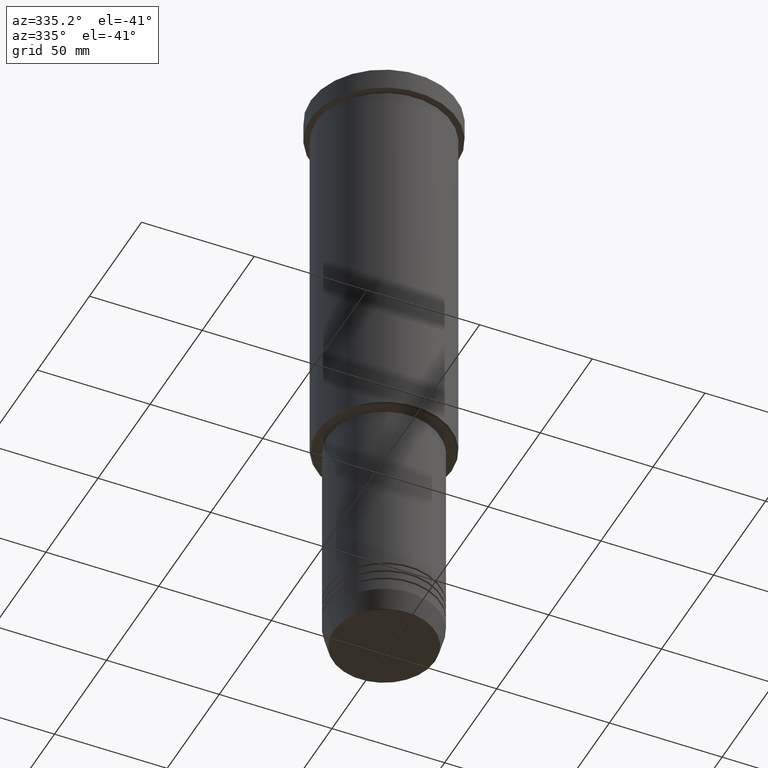
[diagram: clean part render]
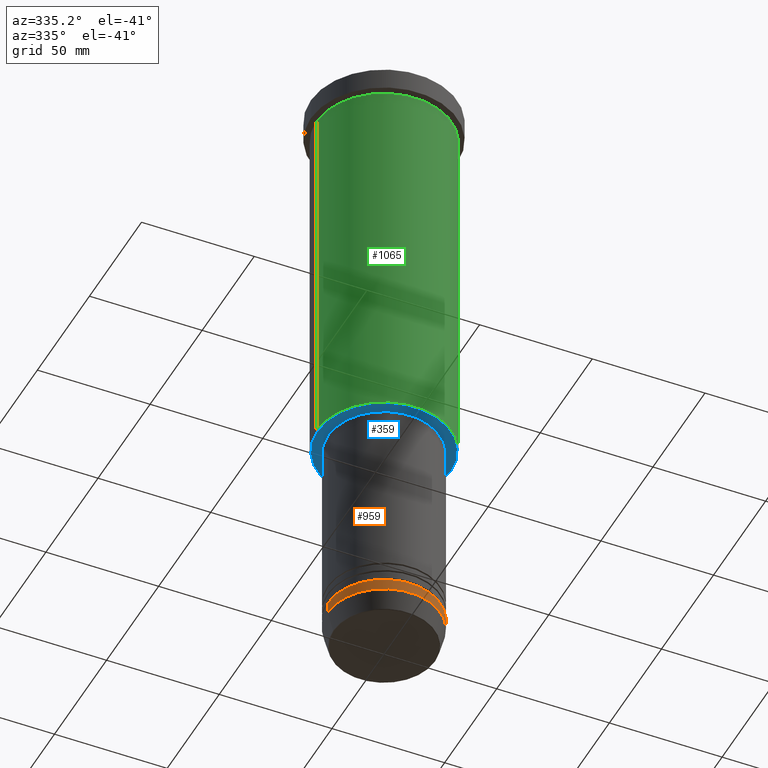
[diagram: same view with three faces highlighted in distinct colors, each labeled with its STEP entity id]
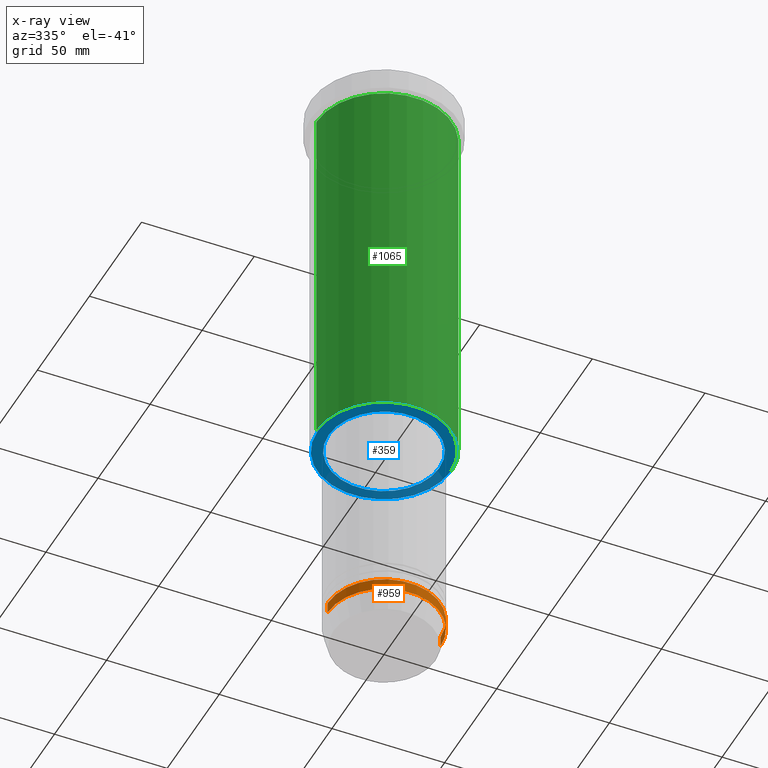
[diagram: x-ray of the same camera — body ghosted, the three highlighted faces saturated]
A machine part, auxiliary view with three faces highlighted in distinct colors.
The next image is the same camera in x-ray (body ghosted, the three faces saturated) — at least one of them is partly hidden behind the body in this view.
Their STEP definitions:

[orange] entity #959 — the highlighted cylindrical surface (partial cylindrical patch) has radius 25 mm, axis along (-0, -0, 1).
#4 = DIRECTION ( 'NONE',  ( 1.000000000000000000, 0.000000000000000000, 0.000000000000000000 ) ) ;
#19 = ORIENTED_EDGE ( 'NONE', *, *, #1155, .F. ) ;
#33 = CARTESIAN_POINT ( 'NONE',  ( -25.00000000000000000, 3.061616997868383043E-15, -271.0000000000000000 ) ) ;
#86 = ORIENTED_EDGE ( 'NONE', *, *, #923, .F. ) ;
#89 = DIRECTION ( 'NONE',  ( 1.000000000000000000, 0.000000000000000000, 0.000000000000000000 ) ) ;
#120 = CIRCLE ( 'NONE', #850, 25.00000000000000000 ) ;
#135 = CARTESIAN_POINT ( 'NONE',  ( -25.00000000000000000, 3.061616997868383043E-15, 0.000000000000000000 ) ) ;
#172 = CARTESIAN_POINT ( 'NONE',  ( 0.000000000000000000, 0.000000000000000000, 0.000000000000000000 ) ) ;
#181 = VERTEX_POINT ( 'NONE', #398 ) ;
#205 = CARTESIAN_POINT ( 'NONE',  ( 0.000000000000000000, 0.000000000000000000, -271.0000000000000000 ) ) ;
#303 = DIRECTION ( 'NONE',  ( 1.000000000000000000, 0.000000000000000000, 0.000000000000000000 ) ) ;
#333 = AXIS2_PLACEMENT_3D ( 'NONE', #205, #397, #303 ) ;
#370 = VECTOR ( 'NONE', #936, 1000.000000000000000 ) ;
#371 = CARTESIAN_POINT ( 'NONE',  ( 25.00000000000000000, 0.000000000000000000, 0.000000000000000000 ) ) ;
#397 = DIRECTION ( 'NONE',  ( -0.000000000000000000, -0.000000000000000000, 1.000000000000000000 ) ) ;
#398 = CARTESIAN_POINT ( 'NONE',  ( -25.00000000000000000, 3.061616997868383043E-15, -266.0000000000000000 ) ) ;
#516 = CIRCLE ( 'NONE', #333, 25.00000000000000000 ) ;
#556 = LINE ( 'NONE', #371, #962 ) ;
#563 = CYLINDRICAL_SURFACE ( 'NONE', #993, 25.00000000000000000 ) ;
#578 = LINE ( 'NONE', #135, #370 ) ;
#679 = VERTEX_POINT ( 'NONE', #852 ) ;
#834 = CARTESIAN_POINT ( 'NONE',  ( 0.000000000000000000, 0.000000000000000000, -266.0000000000000000 ) ) ;
#843 = VERTEX_POINT ( 'NONE', #1170 ) ;
#850 = AXIS2_PLACEMENT_3D ( 'NONE', #834, #929, #89 ) ;
#852 = CARTESIAN_POINT ( 'NONE',  ( 25.00000000000000000, 0.000000000000000000, -271.0000000000000000 ) ) ;
#910 = FACE_OUTER_BOUND ( 'NONE', #1099, .T. ) ;
#914 = DIRECTION ( 'NONE',  ( -0.000000000000000000, -0.000000000000000000, 1.000000000000000000 ) ) ;
#923 = EDGE_CURVE ( 'NONE', #181, #843, #120, .T. ) ;
#929 = DIRECTION ( 'NONE',  ( -0.000000000000000000, -0.000000000000000000, 1.000000000000000000 ) ) ;
#936 = DIRECTION ( 'NONE',  ( -0.000000000000000000, -0.000000000000000000, 1.000000000000000000 ) ) ;
#959 = ADVANCED_FACE ( 'NONE', ( #910 ), #563, .T. ) ;
#962 = VECTOR ( 'NONE', #914, 1000.000000000000000 ) ;
#966 = EDGE_CURVE ( 'NONE', #679, #843, #556, .T. ) ;
#993 = AXIS2_PLACEMENT_3D ( 'NONE', #172, #1100, #4 ) ;
#1082 = ORIENTED_EDGE ( 'NONE', *, *, #1139, .T. ) ;
#1091 = ORIENTED_EDGE ( 'NONE', *, *, #966, .T. ) ;
#1092 = VERTEX_POINT ( 'NONE', #33 ) ;
#1099 = EDGE_LOOP ( 'NONE', ( #19, #1082, #1091, #86 ) ) ;
#1100 = DIRECTION ( 'NONE',  ( -0.000000000000000000, -0.000000000000000000, 1.000000000000000000 ) ) ;
#1139 = EDGE_CURVE ( 'NONE', #1092, #679, #516, .T. ) ;
#1155 = EDGE_CURVE ( 'NONE', #1092, #181, #578, .T. ) ;
#1170 = CARTESIAN_POINT ( 'NONE',  ( 25.00000000000000000, 0.000000000000000000, -266.0000000000000000 ) ) ;

[blue] entity #359 — the highlighted planar face has unit normal (0, 0, -1).
#49 = FACE_OUTER_BOUND ( 'NONE', #639, .T. ) ;
#71 = CARTESIAN_POINT ( 'NONE',  ( 0.000000000000000000, 0.000000000000000000, -176.0000000000000000 ) ) ;
#119 = VERTEX_POINT ( 'NONE', #777 ) ;
#125 = CIRCLE ( 'NONE', #949, 29.50000000000007816 ) ;
#165 = EDGE_LOOP ( 'NONE', ( #374, #459 ) ) ;
#189 = DIRECTION ( 'NONE',  ( 1.000000000000000000, 0.000000000000000000, 0.000000000000000000 ) ) ;
#227 = FACE_BOUND ( 'NONE', #165, .T. ) ;
#251 = VERTEX_POINT ( 'NONE', #857 ) ;
#262 = ORIENTED_EDGE ( 'NONE', *, *, #413, .T. ) ;
#268 = AXIS2_PLACEMENT_3D ( 'NONE', #71, #449, #712 ) ;
#334 = CARTESIAN_POINT ( 'NONE',  ( 0.000000000000000000, 30.00000000000000000, -176.0000000000000000 ) ) ;
#359 = ADVANCED_FACE ( 'NONE', ( #49, #227 ), #1140, .T. ) ;
#374 = ORIENTED_EDGE ( 'NONE', *, *, #457, .T. ) ;
#413 = EDGE_CURVE ( 'NONE', #448, #927, #125, .T. ) ;
#416 = DIRECTION ( 'NONE',  ( -0.000000000000000000, -0.000000000000000000, 1.000000000000000000 ) ) ;
#420 = CARTESIAN_POINT ( 'NONE',  ( 0.000000000000000000, 0.000000000000000000, -176.0000000000000000 ) ) ;
#427 = AXIS2_PLACEMENT_3D ( 'NONE', #520, #416, #786 ) ;
#448 = VERTEX_POINT ( 'NONE', #518 ) ;
#449 = DIRECTION ( 'NONE',  ( 0.000000000000000000, 0.000000000000000000, -1.000000000000000000 ) ) ;
#457 = EDGE_CURVE ( 'NONE', #119, #251, #992, .T. ) ;
#459 = ORIENTED_EDGE ( 'NONE', *, *, #612, .T. ) ;
#465 = AXIS2_PLACEMENT_3D ( 'NONE', #847, #571, #189 ) ;
#518 = CARTESIAN_POINT ( 'NONE',  ( -29.50000000000007816, 3.643324227463380124E-15, -176.0000000000000000 ) ) ;
#520 = CARTESIAN_POINT ( 'NONE',  ( 0.000000000000000000, 0.000000000000000000, -176.0000000000000000 ) ) ;
#571 = DIRECTION ( 'NONE',  ( -0.000000000000000000, -0.000000000000000000, 1.000000000000000000 ) ) ;
#612 = EDGE_CURVE ( 'NONE', #251, #119, #1168, .T. ) ;
#620 = CIRCLE ( 'NONE', #268, 29.50000000000007816 ) ;
#639 = EDGE_LOOP ( 'NONE', ( #829, #262 ) ) ;
#649 = AXIS2_PLACEMENT_3D ( 'NONE', #334, #700, #1051 ) ;
#700 = DIRECTION ( 'NONE',  ( 0.000000000000000000, 0.000000000000000000, -1.000000000000000000 ) ) ;
#712 = DIRECTION ( 'NONE',  ( -1.000000000000000000, 0.000000000000000000, 0.000000000000000000 ) ) ;
#749 = CARTESIAN_POINT ( 'NONE',  ( 29.50000000000007816, 0.000000000000000000, -176.0000000000000000 ) ) ;
#777 = CARTESIAN_POINT ( 'NONE',  ( 24.50000000000000000, 0.000000000000000000, -176.0000000000000000 ) ) ;
#786 = DIRECTION ( 'NONE',  ( 1.000000000000000000, 0.000000000000000000, 0.000000000000000000 ) ) ;
#789 = DIRECTION ( 'NONE',  ( 0.000000000000000000, 0.000000000000000000, -1.000000000000000000 ) ) ;
#829 = ORIENTED_EDGE ( 'NONE', *, *, #871, .T. ) ;
#847 = CARTESIAN_POINT ( 'NONE',  ( 0.000000000000000000, 0.000000000000000000, -176.0000000000000000 ) ) ;
#857 = CARTESIAN_POINT ( 'NONE',  ( -24.50000000000000000, 3.000384657911015469E-15, -176.0000000000000000 ) ) ;
#871 = EDGE_CURVE ( 'NONE', #927, #448, #620, .T. ) ;
#879 = DIRECTION ( 'NONE',  ( -1.000000000000000000, 0.000000000000000000, 0.000000000000000000 ) ) ;
#927 = VERTEX_POINT ( 'NONE', #749 ) ;
#949 = AXIS2_PLACEMENT_3D ( 'NONE', #420, #789, #879 ) ;
#992 = CIRCLE ( 'NONE', #427, 24.50000000000000000 ) ;
#1051 = DIRECTION ( 'NONE',  ( -1.000000000000000000, 0.000000000000000000, -0.000000000000000000 ) ) ;
#1140 = PLANE ( 'NONE',  #649 ) ;
#1168 = CIRCLE ( 'NONE', #465, 24.50000000000000000 ) ;

[green] entity #1065 — the highlighted cylindrical surface (partial cylindrical patch) has radius 30 mm, axis along (-0, -0, 1).
#12 = CARTESIAN_POINT ( 'NONE',  ( 0.000000000000000000, 0.000000000000000000, -10.99999999999999289 ) ) ;
#17 = CARTESIAN_POINT ( 'NONE',  ( -30.00000000000000000, 3.673940397442059178E-15, -10.99999999999999289 ) ) ;
#28 = AXIS2_PLACEMENT_3D ( 'NONE', #12, #487, #846 ) ;
#37 = ORIENTED_EDGE ( 'NONE', *, *, #540, .T. ) ;
#39 = FACE_OUTER_BOUND ( 'NONE', #168, .T. ) ;
#46 = DIRECTION ( 'NONE',  ( -0.000000000000000000, -0.000000000000000000, 1.000000000000000000 ) ) ;
#53 = CARTESIAN_POINT ( 'NONE',  ( -30.00000000000000000, 3.673940397442059178E-15, -175.5000000000000568 ) ) ;
#92 = ORIENTED_EDGE ( 'NONE', *, *, #1178, .F. ) ;
#137 = AXIS2_PLACEMENT_3D ( 'NONE', #670, #1029, #576 ) ;
#140 = LINE ( 'NONE', #853, #684 ) ;
#145 = EDGE_CURVE ( 'NONE', #386, #461, #856, .T. ) ;
#151 = DIRECTION ( 'NONE',  ( -0.000000000000000000, -0.000000000000000000, 1.000000000000000000 ) ) ;
#168 = EDGE_LOOP ( 'NONE', ( #92, #532, #37, #715 ) ) ;
#203 = CYLINDRICAL_SURFACE ( 'NONE', #137, 30.00000000000000000 ) ;
#213 = CARTESIAN_POINT ( 'NONE',  ( 0.000000000000000000, 0.000000000000000000, -175.5000000000000568 ) ) ;
#236 = CARTESIAN_POINT ( 'NONE',  ( 30.00000000000000000, 0.000000000000000000, 0.000000000000000000 ) ) ;
#386 = VERTEX_POINT ( 'NONE', #53 ) ;
#461 = VERTEX_POINT ( 'NONE', #803 ) ;
#487 = DIRECTION ( 'NONE',  ( -0.000000000000000000, -0.000000000000000000, 1.000000000000000000 ) ) ;
#530 = CIRCLE ( 'NONE', #28, 30.00000000000000000 ) ;
#532 = ORIENTED_EDGE ( 'NONE', *, *, #145, .T. ) ;
#540 = EDGE_CURVE ( 'NONE', #461, #580, #974, .T. ) ;
#576 = DIRECTION ( 'NONE',  ( 1.000000000000000000, 0.000000000000000000, 0.000000000000000000 ) ) ;
#580 = VERTEX_POINT ( 'NONE', #880 ) ;
#594 = DIRECTION ( 'NONE',  ( -1.000000000000000000, 0.000000000000000000, 0.000000000000000000 ) ) ;
#644 = AXIS2_PLACEMENT_3D ( 'NONE', #213, #46, #594 ) ;
#670 = CARTESIAN_POINT ( 'NONE',  ( 0.000000000000000000, 0.000000000000000000, 0.000000000000000000 ) ) ;
#684 = VECTOR ( 'NONE', #770, 1000.000000000000000 ) ;
#715 = ORIENTED_EDGE ( 'NONE', *, *, #1004, .F. ) ;
#737 = VECTOR ( 'NONE', #151, 1000.000000000000000 ) ;
#770 = DIRECTION ( 'NONE',  ( -0.000000000000000000, -0.000000000000000000, 1.000000000000000000 ) ) ;
#803 = CARTESIAN_POINT ( 'NONE',  ( 30.00000000000000000, 0.000000000000000000, -175.5000000000000568 ) ) ;
#846 = DIRECTION ( 'NONE',  ( 1.000000000000000000, 0.000000000000000000, 0.000000000000000000 ) ) ;
#853 = CARTESIAN_POINT ( 'NONE',  ( -30.00000000000000000, 3.673940397442059178E-15, 0.000000000000000000 ) ) ;
#856 = CIRCLE ( 'NONE', #644, 30.00000000000000000 ) ;
#880 = CARTESIAN_POINT ( 'NONE',  ( 30.00000000000000000, 0.000000000000000000, -10.99999999999999289 ) ) ;
#889 = VERTEX_POINT ( 'NONE', #17 ) ;
#974 = LINE ( 'NONE', #236, #737 ) ;
#1004 = EDGE_CURVE ( 'NONE', #889, #580, #530, .T. ) ;
#1029 = DIRECTION ( 'NONE',  ( -0.000000000000000000, -0.000000000000000000, 1.000000000000000000 ) ) ;
#1065 = ADVANCED_FACE ( 'NONE', ( #39 ), #203, .T. ) ;
#1178 = EDGE_CURVE ( 'NONE', #386, #889, #140, .T. ) ;